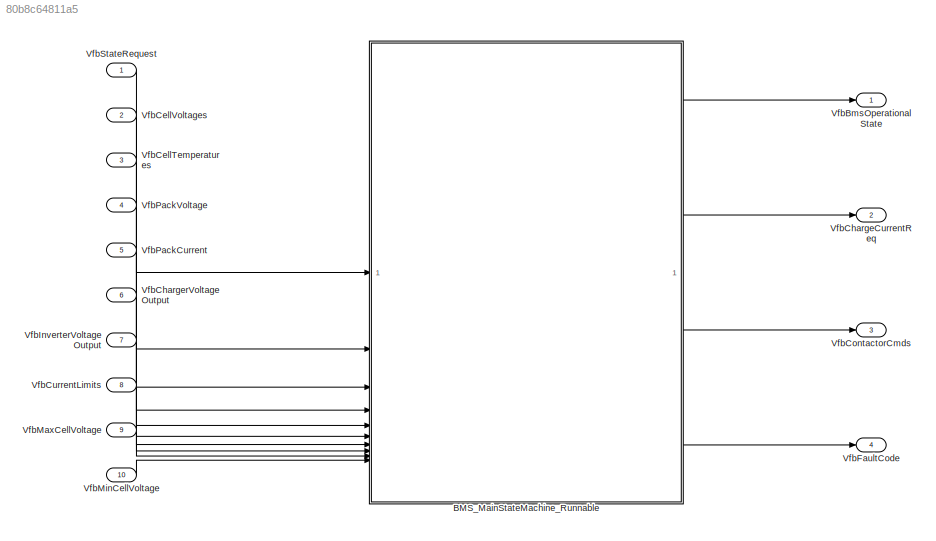
MODEL slx_80b8c64811a5
KIND model
CONFIG AbsTol = auto
CONFIG EnableMultiTasking = on
CONFIG FixedStep = auto
CONFIG MaxStep = auto
CONFIG MinStep = auto
CONFIG RelTol = 1e-3
CONFIG SampleTimeConstraint = Unconstrained
CONFIG SolverName = FixedStepDiscrete
CONFIG StartTime = 0.0
CONFIG StopTime = 10.0
WORKSPACE source: external: MAT-File  (data not in archive)
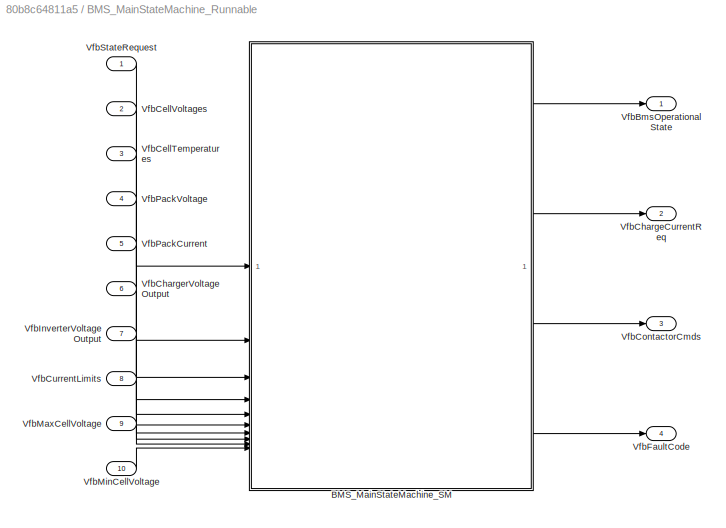
BLOCK [SubSystem] BMS_MainStateMachine_Runnable
  FunctionInterfaceSpec = Allow arguments (Optimized)
  PartitionName = BMS_MainStateMachine_Task
  Priority = 1
  RTWFcnNameOpts = Use subsystem name
  RTWFileNameOpts = Use subsystem name
  RTWSystemCode = Nonreusable function
  ScheduleAs = Periodic partition
  SystemSampleTime = Schedule.BMS_MainStateMachine_Task
  Tag = BMS_MainStateMachine_Task
  TreatAsAtomicUnit = on
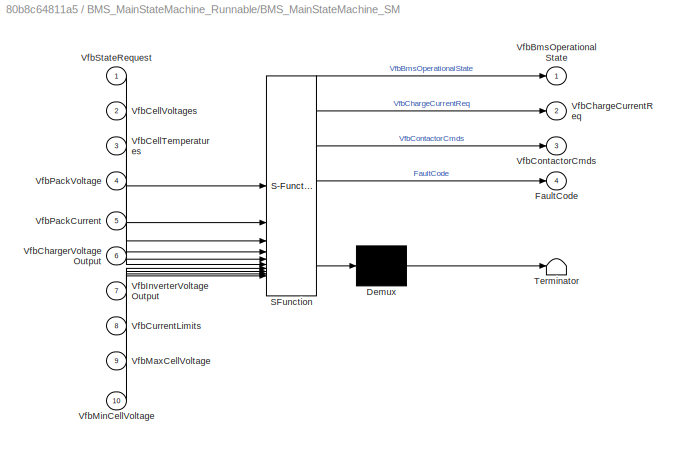
BLOCK [SubSystem] BMS_MainStateMachine_Runnable/BMS_MainStateMachine_SM
  ErrorFcn = Stateflow.Translate.translate
  PermitHierarchicalResolution = ExplicitOnly
  SFBlockType = Chart
  TreatAsAtomicUnit = on
BLOCK [Demux] BMS_MainStateMachine_Runnable/BMS_MainStateMachine_SM/ Demux 
  Outputs = 1
BLOCK [S-Function] BMS_MainStateMachine_Runnable/BMS_MainStateMachine_SM/ SFunction 
  EnableBusSupport = on
  FunctionName = sf_sfun
  PortCounts = [10 5]
  SFcnIsStateOwnerBlock = off
  SFunctionDeploymentMode = off
  Tag = Stateflow S-Function 2
BLOCK [Terminator] BMS_MainStateMachine_Runnable/BMS_MainStateMachine_SM/ Terminator 
BLOCK [Outport] BMS_MainStateMachine_Runnable/BMS_MainStateMachine_SM/FaultCode
  Port = 4
BLOCK [Outport] BMS_MainStateMachine_Runnable/BMS_MainStateMachine_SM/VfbBmsOperationalState
BLOCK [Inport] BMS_MainStateMachine_Runnable/BMS_MainStateMachine_SM/VfbCellTemperatures
  Port = 3
BLOCK [Inport] BMS_MainStateMachine_Runnable/BMS_MainStateMachine_SM/VfbCellVoltages
  Port = 2
BLOCK [Outport] BMS_MainStateMachine_Runnable/BMS_MainStateMachine_SM/VfbChargeCurrentReq
  Port = 2
BLOCK [Inport] BMS_MainStateMachine_Runnable/BMS_MainStateMachine_SM/VfbChargerVoltageOutput
  Port = 6
BLOCK [Outport] BMS_MainStateMachine_Runnable/BMS_MainStateMachine_SM/VfbContactorCmds
  Port = 3
BLOCK [Inport] BMS_MainStateMachine_Runnable/BMS_MainStateMachine_SM/VfbCurrentLimits
  Port = 8
BLOCK [Inport] BMS_MainStateMachine_Runnable/BMS_MainStateMachine_SM/VfbInverterVoltageOutput
  Port = 7
BLOCK [Inport] BMS_MainStateMachine_Runnable/BMS_MainStateMachine_SM/VfbMaxCellVoltage
  Port = 9
BLOCK [Inport] BMS_MainStateMachine_Runnable/BMS_MainStateMachine_SM/VfbMinCellVoltage
  Port = 10
BLOCK [Inport] BMS_MainStateMachine_Runnable/BMS_MainStateMachine_SM/VfbPackCurrent
  Port = 5
BLOCK [Inport] BMS_MainStateMachine_Runnable/BMS_MainStateMachine_SM/VfbPackVoltage
  Port = 4
BLOCK [Inport] BMS_MainStateMachine_Runnable/BMS_MainStateMachine_SM/VfbStateRequest
BLOCK [Outport] BMS_MainStateMachine_Runnable/VfbBmsOperationalState
BLOCK [Inport] BMS_MainStateMachine_Runnable/VfbCellTemperatures
  OutDataTypeStr = single
  Port = 3
  PortDimensions = BATT.Package.NumModules
  Unit = °C
BLOCK [Inport] BMS_MainStateMachine_Runnable/VfbCellVoltages
  OutDataTypeStr = single
  Port = 2
  PortDimensions = BATT.Package.NumModules
  Unit = V
BLOCK [Outport] BMS_MainStateMachine_Runnable/VfbChargeCurrentReq
  Port = 2
BLOCK [Inport] BMS_MainStateMachine_Runnable/VfbChargerVoltageOutput
  OutDataTypeStr = single
  Port = 6
  PortDimensions = 1
  Unit = V
BLOCK [Outport] BMS_MainStateMachine_Runnable/VfbContactorCmds
  BusOutputAsStruct = on
  OutDataTypeStr = Bus: BMS_strContactorCmds
  Port = 3
BLOCK [Inport] BMS_MainStateMachine_Runnable/VfbCurrentLimits
  OutDataTypeStr = single
  Port = 8
  Unit = A
BLOCK [Outport] BMS_MainStateMachine_Runnable/VfbFaultCode
  OutDataTypeStr = uint8
  Port = 4
  PortDimensions = 1
BLOCK [Inport] BMS_MainStateMachine_Runnable/VfbInverterVoltageOutput
  OutDataTypeStr = single
  Port = 7
  PortDimensions = 1
  Unit = V
BLOCK [Inport] BMS_MainStateMachine_Runnable/VfbMaxCellVoltage
  OutDataTypeStr = single
  Port = 9
  PortDimensions = 1
  Unit = V
BLOCK [Inport] BMS_MainStateMachine_Runnable/VfbMinCellVoltage
  OutDataTypeStr = single
  Port = 10
  PortDimensions = 1
  Unit = V
BLOCK [Inport] BMS_MainStateMachine_Runnable/VfbPackCurrent
  OutDataTypeStr = single
  Port = 5
  PortDimensions = 1
  Unit = A
BLOCK [Inport] BMS_MainStateMachine_Runnable/VfbPackVoltage
  OutDataTypeStr = single
  Port = 4
  PortDimensions = 1
  Unit = V
BLOCK [Inport] BMS_MainStateMachine_Runnable/VfbStateRequest
BLOCK [Outport] VfbBmsOperationalState
  OutDataTypeStr = Enum: BMS_State_Enum
  PortDimensions = 1
BLOCK [Inport] VfbCellTemperatures
  OutDataTypeStr = single
  Port = 3
  Unit = °C
BLOCK [Inport] VfbCellVoltages
  OutDataTypeStr = single
  Port = 2
  Unit = V
BLOCK [Outport] VfbChargeCurrentReq
  OutDataTypeStr = single
  Port = 2
  PortDimensions = 1
  Unit = A
BLOCK [Inport] VfbChargerVoltageOutput
  OutDataTypeStr = single
  Port = 6
  PortDimensions = 1
  Unit = V
BLOCK [Outport] VfbContactorCmds
  BusOutputAsStruct = on
  OutDataTypeStr = Bus: BMS_strContactorCmds
  Port = 3
  PortDimensions = 1
BLOCK [Inport] VfbCurrentLimits
  OutDataTypeStr = single
  Port = 8
  PortDimensions = 2
  Unit = A
BLOCK [Outport] VfbFaultCode
  OutDataTypeStr = uint8
  Port = 4
  PortDimensions = 1
BLOCK [Inport] VfbInverterVoltageOutput
  OutDataTypeStr = single
  Port = 7
  PortDimensions = 1
  Unit = V
BLOCK [Inport] VfbMaxCellVoltage
  OutDataTypeStr = single
  Port = 9
  PortDimensions = 1
  Unit = V
BLOCK [Inport] VfbMinCellVoltage
  OutDataTypeStr = single
  Port = 10
  PortDimensions = 1
  Unit = V
BLOCK [Inport] VfbPackCurrent
  OutDataTypeStr = single
  Port = 5
  PortDimensions = 1
  Unit = A
BLOCK [Inport] VfbPackVoltage
  OutDataTypeStr = single
  Port = 4
  PortDimensions = 1
  Unit = V
BLOCK [Inport] VfbStateRequest
  OutDataTypeStr = Enum: BMS_State_Enum
  PortDimensions = 1
LINE BMS_MainStateMachine_Runnable/BMS_MainStateMachine_SM:1 -> BMS_MainStateMachine_Runnable/VfbBmsOperationalState:1
LINE BMS_MainStateMachine_Runnable/BMS_MainStateMachine_SM:2 -> BMS_MainStateMachine_Runnable/VfbChargeCurrentReq:1
LINE BMS_MainStateMachine_Runnable/BMS_MainStateMachine_SM:3 -> BMS_MainStateMachine_Runnable/VfbContactorCmds:1
LINE BMS_MainStateMachine_Runnable/BMS_MainStateMachine_SM:4 -> BMS_MainStateMachine_Runnable/VfbFaultCode:1
LINE BMS_MainStateMachine_Runnable/VfbCellTemperatures:1 -> BMS_MainStateMachine_Runnable/BMS_MainStateMachine_SM:3
LINE BMS_MainStateMachine_Runnable/VfbCellVoltages:1 -> BMS_MainStateMachine_Runnable/BMS_MainStateMachine_SM:2
LINE BMS_MainStateMachine_Runnable/VfbChargerVoltageOutput:1 -> BMS_MainStateMachine_Runnable/BMS_MainStateMachine_SM:6
LINE BMS_MainStateMachine_Runnable/VfbCurrentLimits:1 -> BMS_MainStateMachine_Runnable/BMS_MainStateMachine_SM:8
LINE BMS_MainStateMachine_Runnable/VfbInverterVoltageOutput:1 -> BMS_MainStateMachine_Runnable/BMS_MainStateMachine_SM:7
LINE BMS_MainStateMachine_Runnable/VfbMaxCellVoltage:1 -> BMS_MainStateMachine_Runnable/BMS_MainStateMachine_SM:9
LINE BMS_MainStateMachine_Runnable/VfbMinCellVoltage:1 -> BMS_MainStateMachine_Runnable/BMS_MainStateMachine_SM:10
LINE BMS_MainStateMachine_Runnable/VfbPackCurrent:1 -> BMS_MainStateMachine_Runnable/BMS_MainStateMachine_SM:5
LINE BMS_MainStateMachine_Runnable/VfbPackVoltage:1 -> BMS_MainStateMachine_Runnable/BMS_MainStateMachine_SM:4
LINE BMS_MainStateMachine_Runnable/VfbStateRequest:1 -> BMS_MainStateMachine_Runnable/BMS_MainStateMachine_SM:1
LINE BMS_MainStateMachine_Runnable:1 -> VfbBmsOperationalState:1
LINE BMS_MainStateMachine_Runnable:2 -> VfbChargeCurrentReq:1
LINE BMS_MainStateMachine_Runnable:3 -> VfbContactorCmds:1
LINE BMS_MainStateMachine_Runnable:4 -> VfbFaultCode:1
LINE VfbCellTemperatures:1 -> BMS_MainStateMachine_Runnable:3
LINE VfbCellVoltages:1 -> BMS_MainStateMachine_Runnable:2
LINE VfbChargerVoltageOutput:1 -> BMS_MainStateMachine_Runnable:6
LINE VfbCurrentLimits:1 -> BMS_MainStateMachine_Runnable:8
LINE VfbInverterVoltageOutput:1 -> BMS_MainStateMachine_Runnable:7
LINE VfbMaxCellVoltage:1 -> BMS_MainStateMachine_Runnable:9
LINE VfbMinCellVoltage:1 -> BMS_MainStateMachine_Runnable:10
LINE VfbPackCurrent:1 -> BMS_MainStateMachine_Runnable:5
LINE VfbPackVoltage:1 -> BMS_MainStateMachine_Runnable:4
LINE VfbStateRequest:1 -> BMS_MainStateMachine_Runnable:1
CHART BMS_MainStateMachine_Runnable/BMS_MainStateMachine_SM states=52 transitions=69
  STATE_LABEL 'FaultMonotorig'
  STATE_LABEL 'FaultReset'
  STATE_LABEL 'WaitFaultReset'
  STATE_LABEL 'ResetFaultCode\nen: FaultCode = uint8(0);'
  STATE_LABEL '[VfbStateRequest == BMS_State_Enum.BMS_FaultReset && ...\n after(FaultResetTime, msec)]'
  STATE_LABEL 'MonitorCurrLim'
  STATE_LABEL 'NoCurrLimFault\nen:\nFaultCode = bitand(FaultCode, bitcmp(bitshift(uint8(1),OverCurrBit)));'
  STATE_LABEL 'OverCurrLimFault\nen:FaultCode = bitor(FaultCode, bitshift(uint8(1),OverCurrBit));'
  STATE_LABEL '[VfbBmsOperationalState == BMS_State_Enum.BMS_Driving && ...\nduration(((VfbPackCurrent - VfbCurrentLimits(DchargeIndex)) > Current_Overthreshold) ...\n                                                > CurrTimeout, msec)]'
  STATE_LABEL '[VfbBmsOperationalState == BMS_State_Enum.BMS_Charging && ...\nduration(((VfbPackCurrent - VfbCurrentLimits(ChargeIndex)) > Current_Overthreshold) ...\n                                                > CurrTimeout, msec)]'
  STATE_LABEL 'MonitorCellTemp'
  STATE_LABEL 'NoCellTempFault\nen:\nFaultCode = bitand(FaultCode, bitcmp(bitshift(uint8(1),HighTempBit)));\nFaultCode = bitand(FaultCode, bitcmp(bitshift(uint8(1),LowTempBit)));\nen, du:\nMaxCellTemp = max(VfbCellTemperatures);\nMinCellTemp = min(VfbCellTemperatures);'
  STATE_LABEL 'HighCellTempFault\nen:FaultCode = bitor(FaultCode, bitshift(uint8(1),HighTempBit));'
  STATE_LABEL 'LowCellTempFault\nen:FaultCode = bitor(FaultCode, bitshift(uint8(1),LowTempBit));'
  STATE_LABEL '[duration((MinCellTemp < Temperature_Min) > TempTimeout, msec)]'
  STATE_LABEL '[duration((MaxCellTemp > Temperature_Max) > TempTimeout, msec)]'
  STATE_LABEL 'MonitorCellVoltage'
  STATE_LABEL 'NoCellTempFault\nen:\nFaultCode = bitand(FaultCode, bitcmp(bitshift(uint8(1),OverVoltBit)));\nFaultCode = bitand(FaultCode, bitcmp(bitshift(uint8(1),UnderVoltBit)));\nFaultCode = bitand(FaultCode, bitcmp(bitshift(uint8(1),VoltSensBit)));\nen, du:\nVoltDelta = abs(VfbPackVoltage - sum(VfbCellVoltages))'
  STATE_LABEL 'VoltSensFault\nen:FaultCode = bitor(FaultCode, bitshift(uint8(1),VoltSensBit));'
  STATE_LABEL 'UnderCellVoltFault\nen:FaultCode = bitor(FaultCode, bitshift(uint8(1),UnderVoltBit));'
  STATE_LABEL 'OverCellVoltFault\nen:FaultCode = bitor(FaultCode, bitshift(uint8(1),OverVoltBit));'
  STATE_LABEL '[VfbMaxCellVoltage >= Voltage_Over]'
  STATE_LABEL '[VfbMinCellVoltage <= Voltage_Under]'
  STATE_LABEL '[VoltDelta > Voltage_threshold]'
  STATE_LABEL 'FaultReset'
  STATE_LABEL 'WaitFaultReset'
  STATE_LABEL 'ResetFaultCode\nen: FaultCode = uint8(0);'
  STATE_LABEL '[VfbStateRequest == BMS_State_Enum.BMS_FaultReset && ...\n after(FaultResetTime, msec)]'
  STATE_LABEL 'WaitFaultReset'
  STATE_LABEL 'ResetFaultCode\nen: FaultCode = uint8(0);'
  STATE_LABEL 'MonitorCurrLim'
  STATE_LABEL 'NoCurrLimFault\nen:\nFaultCode = bitand(FaultCode, bitcmp(bitshift(uint8(1),OverCurrBit)));'
  STATE_LABEL 'OverCurrLimFault\nen:FaultCode = bitor(FaultCode, bitshift(uint8(1),OverCurrBit));'
  STATE_LABEL '[VfbBmsOperationalState == BMS_State_Enum.BMS_Driving && ...\nduration(((VfbPackCurrent - VfbCurrentLimits(DchargeIndex)) > Current_Overthreshold) ...\n                                                > CurrTimeout, msec)]'
  STATE_LABEL '[VfbBmsOperationalState == BMS_State_Enum.BMS_Charging && ...\nduration(((VfbPackCurrent - VfbCurrentLimits(ChargeIndex)) > Current_Overthreshold) ...\n                                                > CurrTimeout, msec)]'
  STATE_LABEL 'NoCurrLimFault\nen:\nFaultCode = bitand(FaultCode, bitcmp(bitshift(uint8(1),OverCurrBit)));'
  STATE_LABEL 'OverCurrLimFault\nen:FaultCode = bitor(FaultCode, bitshift(uint8(1),OverCurrBit));'
  STATE_LABEL 'MonitorCellTemp'
  STATE_LABEL 'NoCellTempFault\nen:\nFaultCode = bitand(FaultCode, bitcmp(bitshift(uint8(1),HighTempBit)));\nFaultCode = bitand(FaultCode, bitcmp(bitshift(uint8(1),LowTempBit)));\nen, du:\nMaxCellTemp = max(VfbCellTemperatures);\nMinCellTemp = min(VfbCellTemperatures);'
  STATE_LABEL 'HighCellTempFault\nen:FaultCode = bitor(FaultCode, bitshift(uint8(1),HighTempBit));'
CHART  states=0 transitions=0
